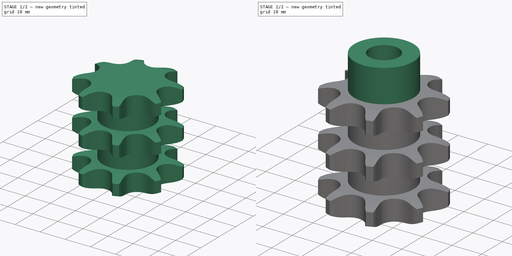
[diagram: build sequence overview — one tinted view per stage of 2, left to right]
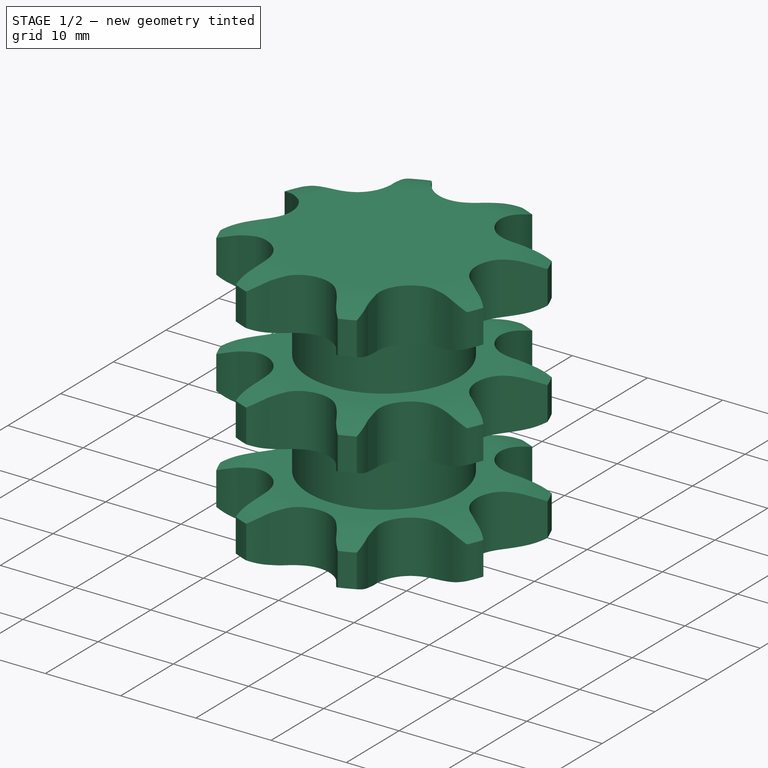
[diagram: stage 1 of 2 — iso view after this stage's code; geometry added in this stage tinted green]
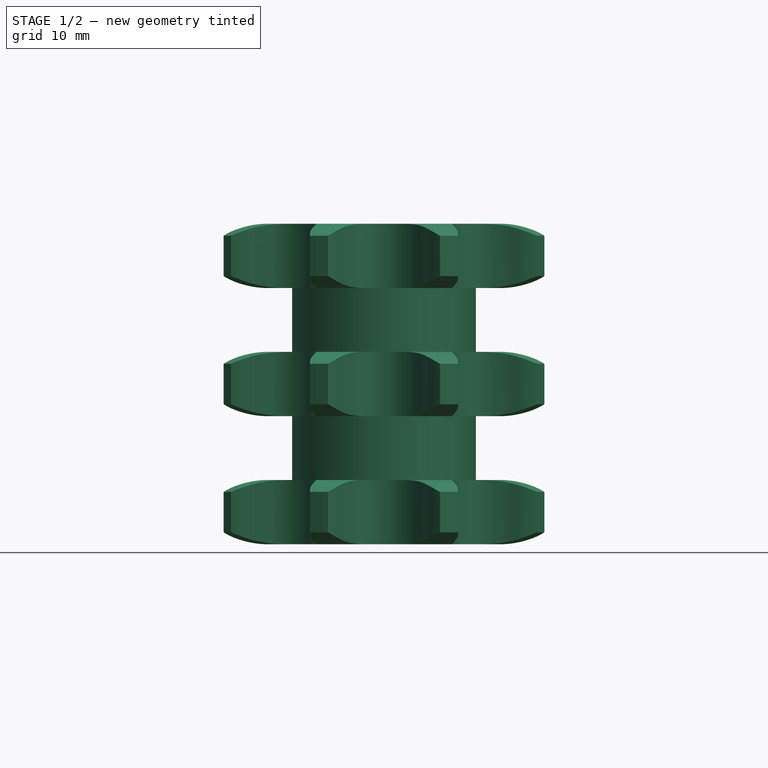
[diagram: stage 1 of 2 — front view after this stage's code; geometry added in this stage tinted green]
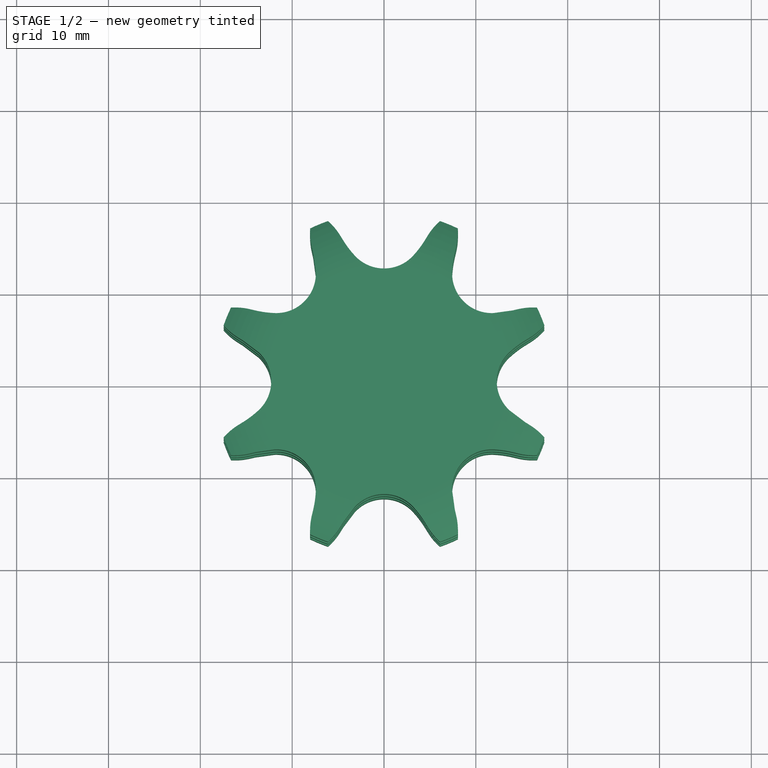
[diagram: stage 1 of 2 — top view after this stage's code; geometry added in this stage tinted green]
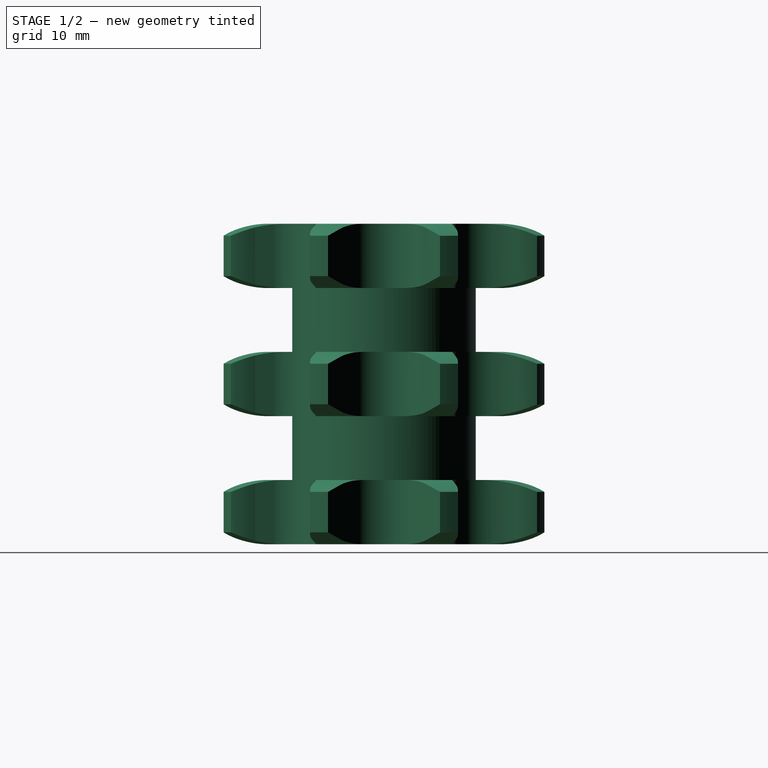
[diagram: stage 1 of 2 — right view after this stage's code; geometry added in this stage tinted green]
FCSTD DOCUMENT  (FreeCAD 1.0R38806 (Git))
Label: Sprocket ANSI triplex ½x⁵⁄₁₆
License: All rights reserved
LicenseURL: http://en.wikipedia.org/wiki/All_rights_reserved
objects: Sketcher::SketchObject×3, PartDesign::Pad×2, Spreadsheet::Sheet×1, Part::Part2DObjectPython×1, PartDesign::Groove×1, PartDesign::Pocket×1, PartDesign::Body×1
note: 20 computed .brp shape members not serialized (recipe doc carries the construction recipe); baked Part::Feature solids carry a one-line shape summary decoded from their .brp

FEATURE [Spreadsheet::Sheet] Spreadsheet  label="Data"
  TeethNumber = 0
  cells = A1='Number of teeth; B1='P (Pitch); C1='Wc (Chain width); D1='Dr (Roller diameter); E1='Tr (Tooth radius); F1='Rw (Radius width); G1='Wt1 (Tooth width 1); H1='Wt3 (Tooth width 3); I1='z (Number of teeth); J1='De (External Diameter); K1='Dp (pitch diameter); L1='d (Hub diameter); M1='D (Hole diameter); N1='H (Total height); A2==hiddenref(.TeethNumber.String); B2(P)==.B3; C2(Wc)==.C3; D2(Dr)==.D3; E2(Tr)==.E3; F2(Rw)==.F3; G2(Wt1)==.G3; H2(Wt3)==.H3; I2(z)==.I3; J2(De)==.J3; K2(Dp)==.K3; L2(d)==.L3; M2(D)==.M3; N2(H)==.N3; A3='Z 8; B3==12.7 mm; C3==7.75 mm; D3==8.51 mm; E3==13 mm; F3==1.3 mm; G3==7 mm; H3==34.9 mm; I3=8; J3==37 mm; K3==33.18 mm; L3==20 mm; M3==10 mm; N3==46 mm; A4='Z 9; B4==12.7 mm; C4==7.75 mm; D4==8.51 mm; E4==13 mm; F4==1.3 mm; G4==7 mm; H4==34.9 mm; I4=9; J4==41 mm; K4==37.13 mm; L4==24 mm; M4==12 mm; N4==46 mm; A5='Z 10; B5==12.7 mm; C5==7.75 mm; D5==8.51 mm; E5==13 mm; F5==1.3 mm; G5==7 mm; H5==34.9 mm; I5=10; J5==45.2 mm; K5==41.1 mm; L5==28 mm; M5==12 mm; N5==46 mm; A6='Z 11; B6==12.7 mm; C6==7.75 mm; D6==8.51 mm; E6==13 mm; F6==1.3 mm; G6==7 mm; H6==34.9 mm; I6=11; J6==48.7 mm; K6==45.07 mm; L6==32 mm; M6==14 mm; N6==50 mm; A7='Z 12; B7==12.7 mm; C7==7.75 mm; D7==8.51 mm; E7==13 mm; F7==1.3 mm; G7==7 mm; H7==34.9 mm; I7=12; J7==53 mm; K7==49.07 mm; L7==35 mm; M7==14 mm; N7==50 mm; A8='Z 13; B8==12.7 mm; C8==7.75 mm; D8==8.51 mm; E8==13 mm; F8==1.3 mm; G8==7 mm; H8==34.9 mm; I8=13; J8==57.4 mm; K8==53.06 mm; L8==38 mm; M8==14 mm; N8==50 mm; A9='Z 14; B9==12.7 mm; C9==7.75 mm; D9==8.51 mm; E9==13 mm; F9==1.3 mm; G9==7 mm; H9==34.9 mm; I9=14; J9==61.8 mm; K9==57.07 mm; L9==42 mm; M9==14 mm; N9==50 mm; A10='Z 15; B10==12.7 mm; C10==7.75 mm; D10==8.51 mm; E10==13 mm; F10==1.3 mm; G10==7 mm; H10==34.9 mm; I10=15; J10==65.5 mm; K10==61.09 mm; L10==46 mm; M10==14 mm; N10==50 mm; A11='Z 16; B11==12.7 mm; C11==7.75 mm; D11==8.51 mm; E11==13 mm; F11==1.3 mm; G11==7 mm; H11==34.9 mm; I11=16; J11==69.5 mm; K11==65.1 mm; L11==50 mm; M11==16 mm; N11==50 mm; A12='Z 17; B12==12.7 mm; C12==7.75 mm; D12==8.51 mm; E12==13 mm; F12==1.3 mm; G12==7 mm; H12==34.9 mm; I12=17; J12==73.6 mm; K12==69.11 mm; L12==54 mm; M12==16 mm; N12==50 mm; A13='Z 18; B13==12.7 mm; C13==7.75 mm; D13==8.51 mm; E13==13 mm; F13==1.3 mm; G13==7 mm; H13==34.9 mm; I13=18; J13==77.8 mm; K13==73.14 mm; L13==58 mm; M13==16 mm; N13==50 mm; A14='Z 19; B14==12.7 mm; C14==7.75 mm; D14==8.51 mm; E14==13 mm; F14==1.3 mm; G14==7 mm; H14==34.9 mm; I14=19; J14==81.7 mm; K14==77.16 mm; L14==62 mm; M14==16 mm; N14==50 mm; A15='Z 20; B15==12.7 mm; C15==7.75 mm; D15==8.51 mm; +290 more cells
  expr: .TeethNumber.Enum = cells[<<A3:|>>]
  expr: .cells.Bind.B2.ZZ2 = tuple(.cells; <<B>> + str(hiddenref(TeethNumber) + 3); <<ZZ>> + str(hiddenref(TeethNumber) + 3))
FEATURE [Part::Part2DObjectPython] Sprocket  label="Teeth sketch"  # Draft 2D object (typed FeaturePython)
  ANSISize = 40
  NumberOfTeeth = 8
  Pitch = 12.7
  RollerDiameter = 8.51
  Thickness = 2.794
  expr: NumberOfTeeth = <<Data>>.z
  expr: Pitch = <<Data>>.P
  expr: RollerDiameter = <<Data>>.Dr
FEATURE [PartDesign::Pad] Pad  label="Teeth"
  Direction = (0,0,1)
  Length = 34.9
  Length2 = 100
  Profile = -> Sprocket
  Suppressed = false
  Type = 0
  expr: Length = Spreadsheet.Wt3
FEATURE [Sketcher::SketchObject] Sketch  label="Radius"
  ArcFitTolerance = 0
  AttachmentSupport = -> [XZ_Plane]
  FullyConstrained = true
  MakeInternals = false
  MapMode = 5
  Placement = pos=(0,0,0) rot=(1,0,0;1.5708rad)
  expr: .Constraints.Re = <<Data>>.De / 2
  expr: .Constraints.Rw = <<Data>>.Rw
  expr: .Constraints.Tr = <<Data>>.Tr
  expr: .Constraints.Wt1 = <<Data>>.Wt1
  expr: .Constraints.Wt3 = Spreadsheet.Wt3
  expr: .Constraints.r = <<Data>>.d / 2
  sketch-geometry (26):
    g0: ArcOfCircle CenterX=12.8334 CenterY=13 CenterZ=0 NormalX=0 NormalY=0 NormalZ=1 AngleXU=0 Radius=13 StartAngle=4.71239 EndAngle=5.16342
    g1: LineSegment StartX=12.8334 StartY=0 StartZ=0 EndX=28.5 EndY=0 EndZ=0
    g2: LineSegment StartX=28.5 StartY=34.9 StartZ=0 EndX=28.5 EndY=0 EndZ=0
    g3: ArcOfCircle CenterX=12.8334 CenterY=-6 CenterZ=0 NormalX=0 NormalY=0 NormalZ=1 AngleXU=0 Radius=13 StartAngle=1.11977 EndAngle=1.5708
    g4: LineSegment StartX=18.5 StartY=1.3 StartZ=0 EndX=18.5 EndY=5.7 EndZ=0
    g5: ArcOfCircle CenterX=12.8334 CenterY=40.9 CenterZ=0 NormalX=0 NormalY=0 NormalZ=1 AngleXU=0 Radius=13 StartAngle=4.71239 EndAngle=5.16342
    g6: LineSegment StartX=18.5 StartY=29.2 StartZ=0 EndX=18.5 EndY=33.6 EndZ=0
    g7: LineSegment StartX=12.8334 StartY=34.9 StartZ=0 EndX=28.5 EndY=34.9 EndZ=0
    g8: ArcOfCircle CenterX=12.8334 CenterY=21.9 CenterZ=0 NormalX=0 NormalY=0 NormalZ=1 AngleXU=0 Radius=13 StartAngle=1.11977 EndAngle=1.5708
    g9: LineSegment StartX=12.8334 StartY=27.9 StartZ=0 EndX=10 EndY=27.9 EndZ=0
    g10: LineSegment StartX=10 StartY=7 StartZ=0 EndX=12.8334 EndY=7 EndZ=0
    g11: LineSegment StartX=10 StartY=27.9 StartZ=0 EndX=10 EndY=20.95 EndZ=0
    g12: LineSegment StartX=10 StartY=7 StartZ=0 EndX=10 EndY=13.95 EndZ=0
    g13: LineSegment StartX=10 StartY=20.95 StartZ=0 EndX=12.8334 EndY=20.95 EndZ=0
    g14: LineSegment StartX=10 StartY=13.95 StartZ=0 EndX=12.8334 EndY=13.95 EndZ=0
    g15: LineSegment StartX=18.5 StartY=19.65 StartZ=0 EndX=18.5 EndY=15.25 EndZ=0
    g16: LineSegment [constr] StartX=18.5 StartY=29.2 StartZ=0 EndX=18.5 EndY=19.65 EndZ=0
    g17: LineSegment [constr] StartX=18.5 StartY=15.25 StartZ=0 EndX=18.5 EndY=5.7 EndZ=0
    g18: ArcOfCircle CenterX=12.8334 CenterY=7.95 CenterZ=0 NormalX=0 NormalY=0 NormalZ=1 AngleXU=0 Radius=13 StartAngle=1.11977 EndAngle=1.5708
    g19: ArcOfCircle CenterX=12.8334 CenterY=26.95 CenterZ=0 NormalX=0 NormalY=0 NormalZ=1 AngleXU=0 Radius=13 StartAngle=4.71239 EndAngle=5.16342
    g20: LineSegment [constr] StartX=12.8334 StartY=20.95 StartZ=0 EndX=12.8334 EndY=13.95 EndZ=0
    g21: LineSegment [constr] StartX=12.8334 StartY=7 StartZ=0 EndX=12.8334 EndY=0 EndZ=0
    g22: LineSegment [constr] StartX=12.8334 StartY=34.9 StartZ=0 EndX=12.8334 EndY=27.9 EndZ=0
    g23: LineSegment [constr] StartX=10 StartY=20.95 StartZ=0 EndX=10 EndY=13.95 EndZ=0
    g24: LineSegment [constr] StartX=12.8334 StartY=7 StartZ=0 EndX=12.8334 EndY=13.95 EndZ=0
    g25: LineSegment [constr] StartX=12.8334 StartY=27.9 StartZ=0 EndX=12.8334 EndY=20.95 EndZ=0
  constraints (70):
    c: PointOnObject(g0,g-1)
    c: Radius(g0) = 13  'Tr'
    c: DistanceY(g0,g0) = 1.3  'Rw'
    c: PointOnObject(g1,g-1)
    c: Coincident(g2,g1)
    c: Vertical(g2)
    c: DistanceX(g0) = 18.5  'Re'
    c: Coincident(g4,g0)
    c: Vertical(g4)
    c: Coincident(g4,g3)
    c: Equal(g3,g0)
    c: Coincident(g6,g5)
    c: Vertical(g6)
    c: Coincident(g7,g2)
    c: Horizontal(g7)
    c: DistanceY(g0,g3) = 7  'Wt1'
    c: DistanceY(g2,g2) = 34.9  'Wt3'
    c: Coincident(g8,g6)
    c: Tangent(g8,g7) = 1.5708
    c: Equal(g0,g8)
    c: Equal(g6,g4)
    c: Horizontal(g9)
    c: Horizontal(g10)
    c: DistanceX(g9) = 10  'r'
    c: DistanceX(g6,g2) = 10
    c: Coincident(g11,g9)
    c: Vertical(g11)
    c: Coincident(g12,g10)
    c: Vertical(g12)
    c: Coincident(g13,g11)
    c: Horizontal(g13)
    c: Coincident(g14,g12)
    c: Horizontal(g14)
    c: Vertical(g15)
    c: Coincident(g16,g5)
    c: Coincident(g16,g15)
    c: Vertical(g16)
    c: Coincident(g17,g15)
    c: Coincident(g17,g3)
    c: Vertical(g17)
    c: Equal(g16,g17)
    c: Coincident(g18,g15)
    c: Coincident(g19,g15)
    c: Tangent(g19,g14) = -1.5708
    c: Tangent(g18,g13) = 1.5708
    c: Equal(g0,g19)
    c: Equal(g0,g18)
    c: Coincident(g20,g13)
    c: Coincident(g20,g14)
    c: Vertical(g20)
    c: Coincident(g21,g3)
    c: Coincident(g21,g0)
    c: Vertical(g21)
    c: Tangent(g9,g5) = 1.5708
    c: Tangent(g10,g3) = 1.5708
    c: Tangent(g1,g0) = -1.5708
    c: Equal(g21,g20)
    c: Coincident(g22,g7)
    c: Coincident(g22,g5)
    c: Vertical(g22)
    c: Equal(g0,g5)
    c: Coincident(g23,g11)
    c: Coincident(g23,g12)
    c: Vertical(g23)
    c: Coincident(g24,g3)
    c: Coincident(g24,g14)
    c: Vertical(g24)
    c: Coincident(g25,g5)
    c: Coincident(g25,g13)
    c: Vertical(g25)
FEATURE [PartDesign::Groove] Groove  label="Teeth Radius"
  Angle = 360
  Angle2 = 60
  Axis = (-3e-16,3e-16,1)
  Base = (0,0,0)
  BaseFeature = -> Pad
  Profile = -> Sketch
  ReferenceAxis = -> Z_Axis
  Suppressed = false
  Type = 0
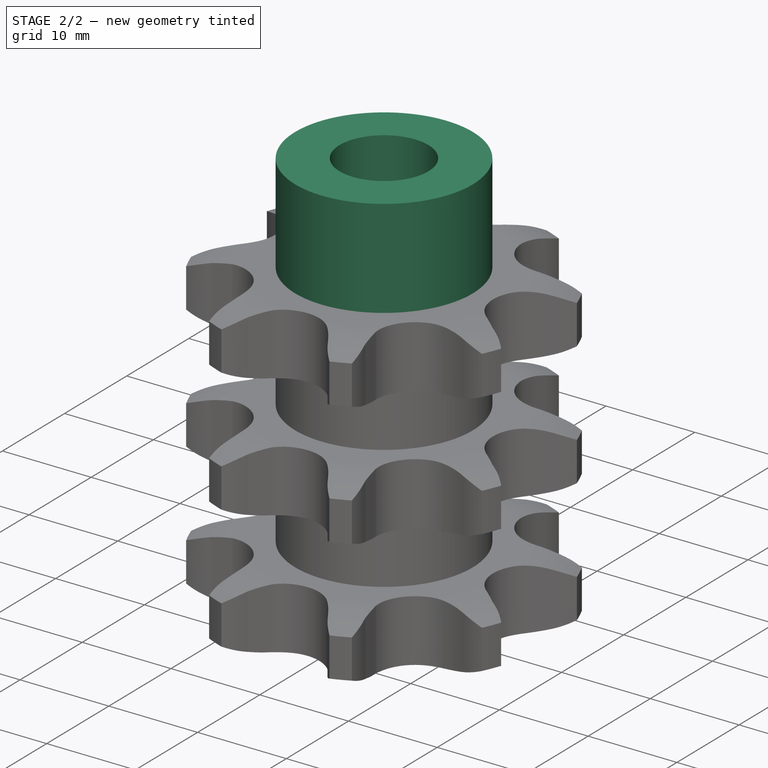
[diagram: stage 2 of 2 — iso view after this stage's code; geometry added in this stage tinted green]
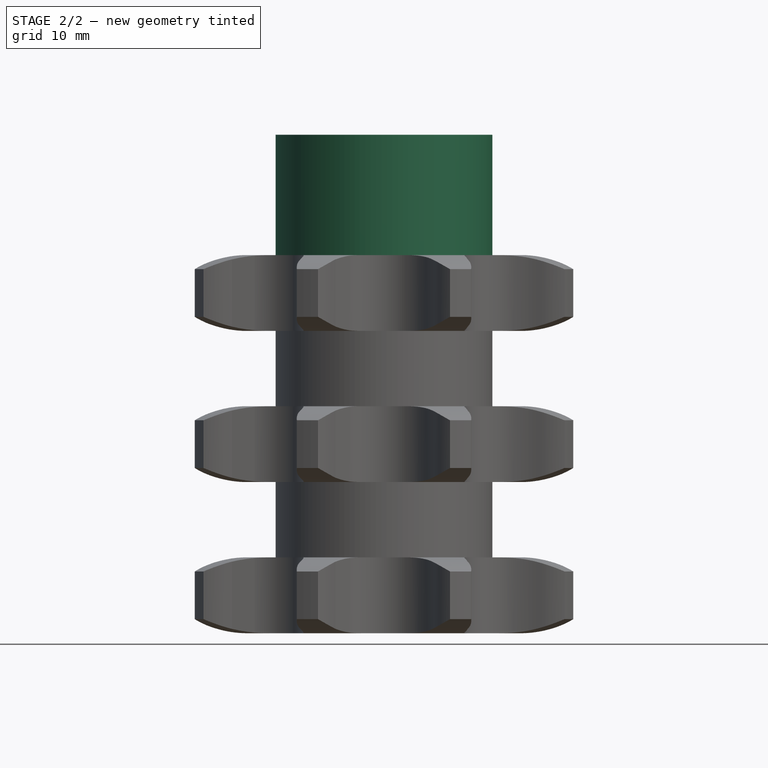
[diagram: stage 2 of 2 — front view after this stage's code; geometry added in this stage tinted green]
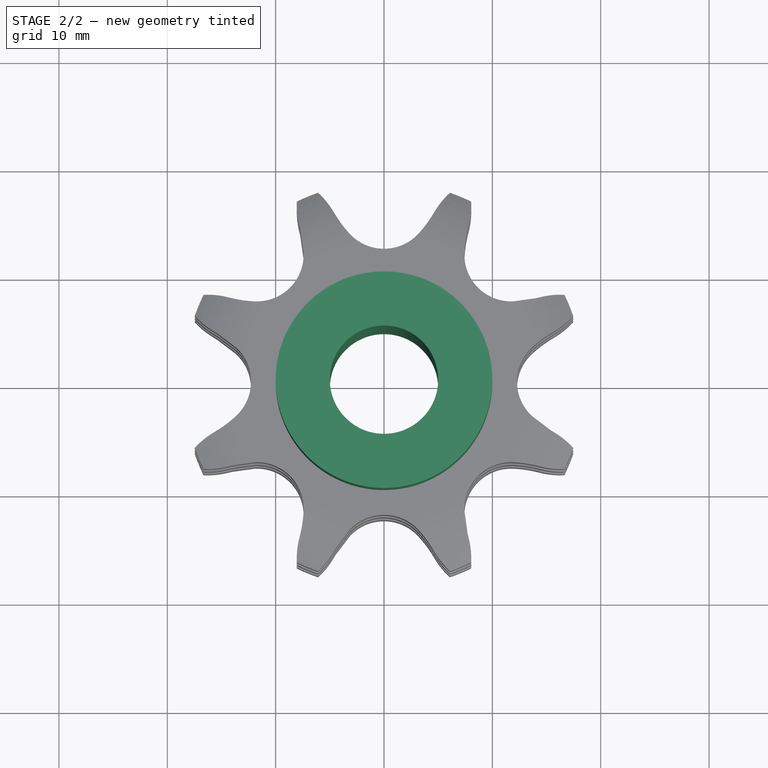
[diagram: stage 2 of 2 — top view after this stage's code; geometry added in this stage tinted green]
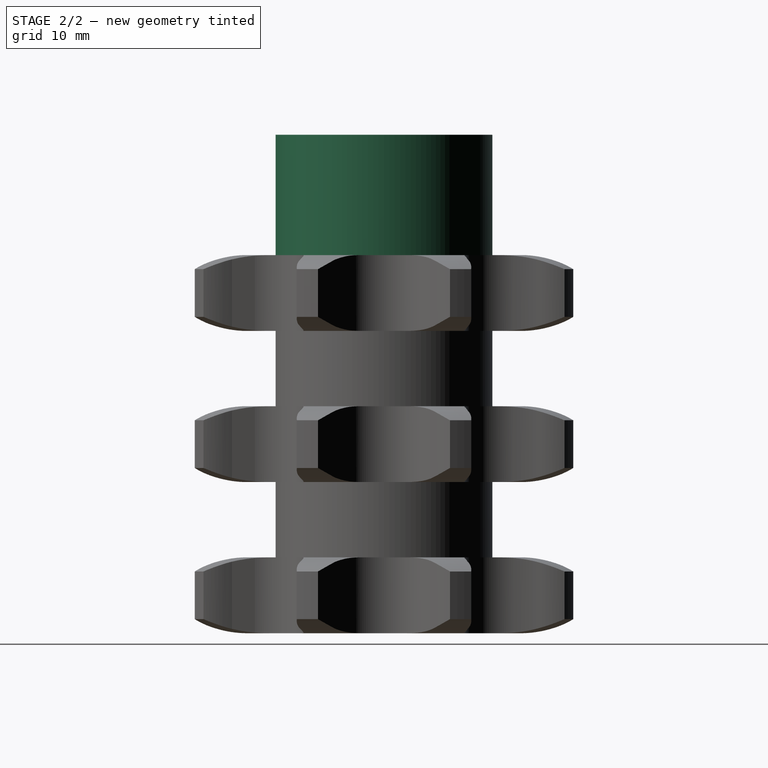
[diagram: stage 2 of 2 — right view after this stage's code; geometry added in this stage tinted green]
FEATURE [Sketcher::SketchObject] Sketch001  label="Hub sketch"
  ArcFitTolerance = 0
  AttachmentSupport = -> [XY_Plane]
  FullyConstrained = true
  MakeInternals = false
  MapMode = 5
  expr: .Constraints.r = <<Data>>.d
  sketch-geometry (1):
    g0: Circle CenterX=0 CenterY=0 CenterZ=0 NormalX=0 NormalY=0 NormalZ=1 AngleXU=0 Radius=10
  constraints (2):
    c: Coincident(g0,g-1)
    c: Diameter(g0) = 20  'r'
FEATURE [PartDesign::Pad] Pad001  label="Hub"
  BaseFeature = -> Groove
  Direction = (0,0,1)
  Length = 46
  Length2 = 100
  Profile = -> Sketch001
  Suppressed = false
  Type = 0
FEATURE [Sketcher::SketchObject] Sketch002  label="Hole sketch"
  ArcFitTolerance = 0
  AttachmentSupport = -> [XY_Plane]
  FullyConstrained = true
  MakeInternals = false
  MapMode = 5
  expr: .Constraints.R = <<Data>>.D
  sketch-geometry (1):
    g0: Circle CenterX=0 CenterY=0 CenterZ=0 NormalX=0 NormalY=0 NormalZ=1 AngleXU=0 Radius=5
  constraints (2):
    c: Coincident(g0,g-1)
    c: Diameter(g0) = 10  'R'
FEATURE [PartDesign::Pocket] Pocket  label="Hole"
  BaseFeature = -> Pad001
  Direction = (0,0,-1)
  Length = 5
  Length2 = 100
  Midplane = true
  Profile = -> Sketch002
  Suppressed = false
  Type = 1
FEATURE [PartDesign::Body] Body  label="Sprocket ANSI triplex ½x⁵⁄₁₆"
  AllowCompound = false
  Group = -> [Sprocket,Pad,Sketch,Groove,Sketch001,Pad001,Sketch002,Pocket]
  Origin = -> Origin
  Tip = -> Pocket
  expr: Label2 = <<z%s>> % <<Data>>.z
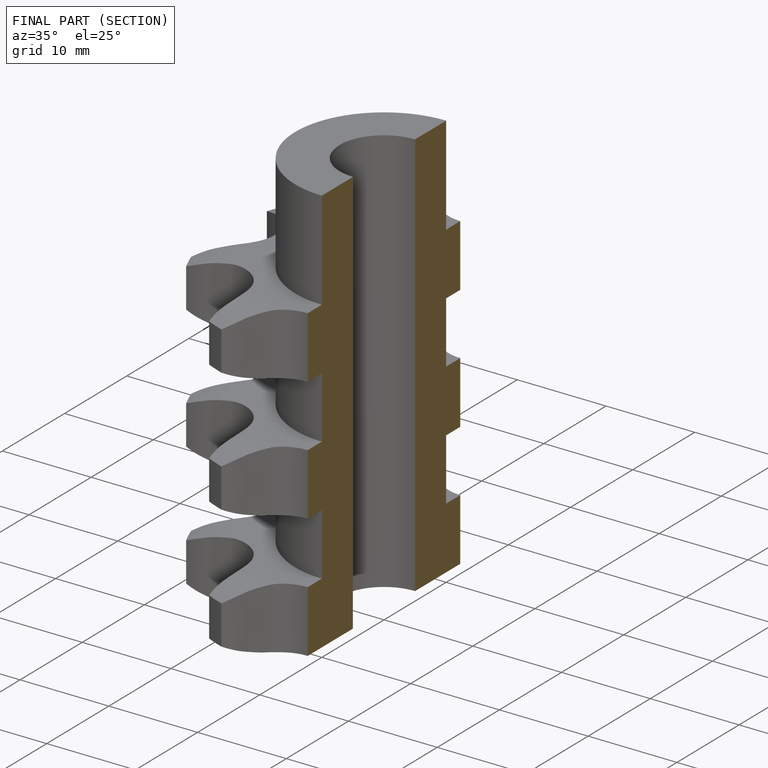
[diagram: finished part — half-section view (interior)]
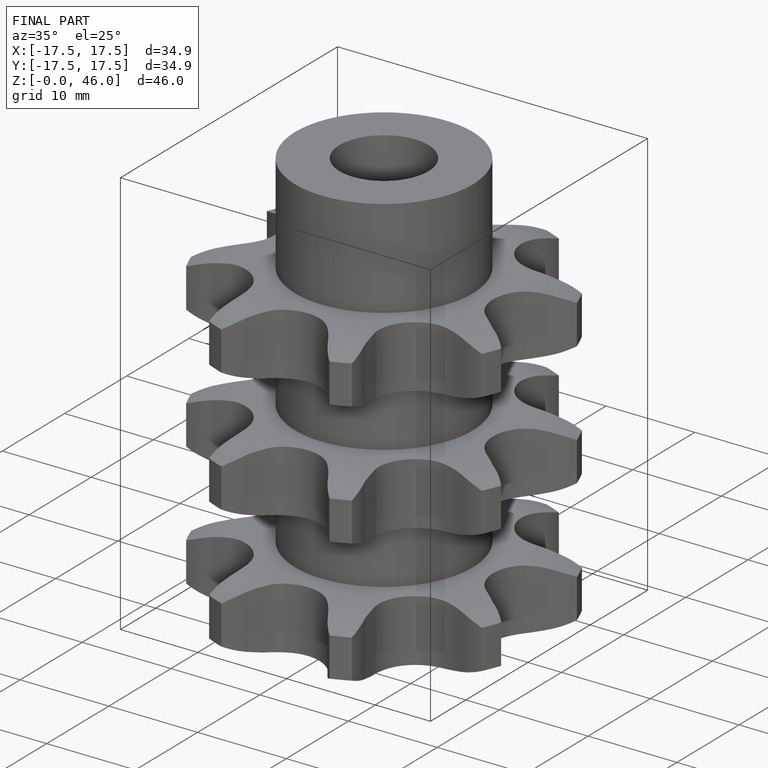
[diagram: finished part — iso view with bounding-box wireframe]
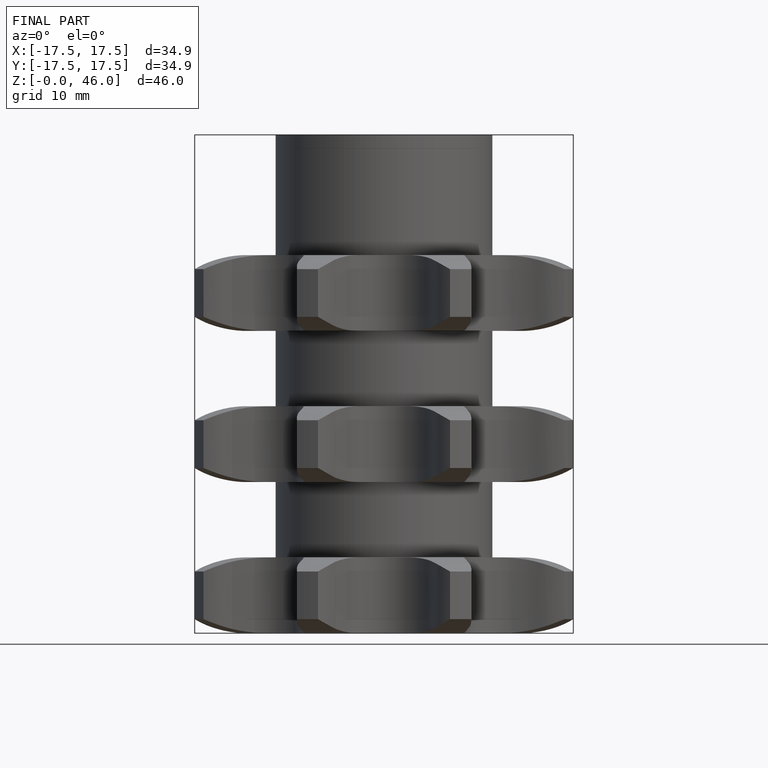
[diagram: finished part — front view with bounding-box wireframe]
